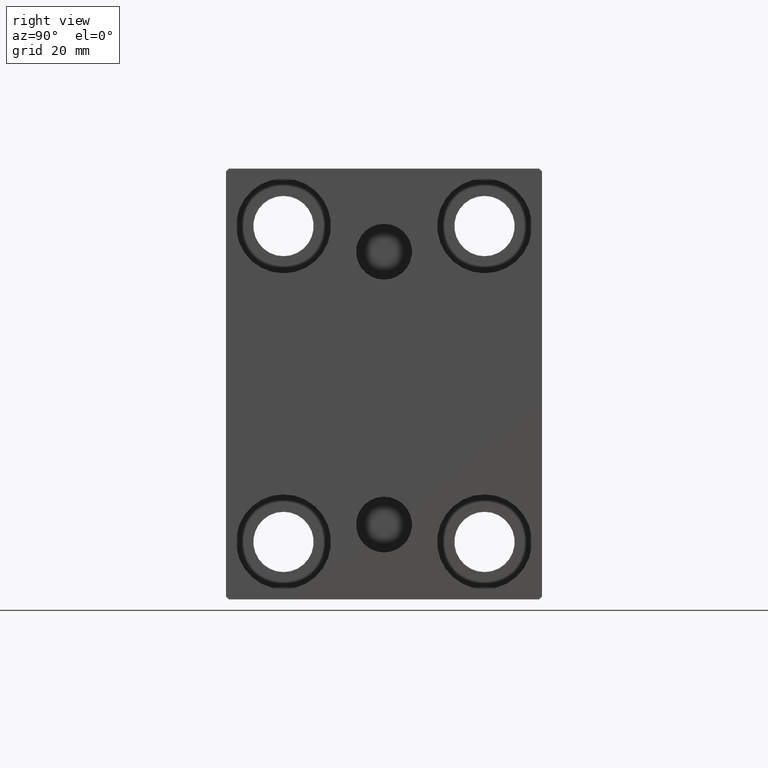
[diagram: clean part render]
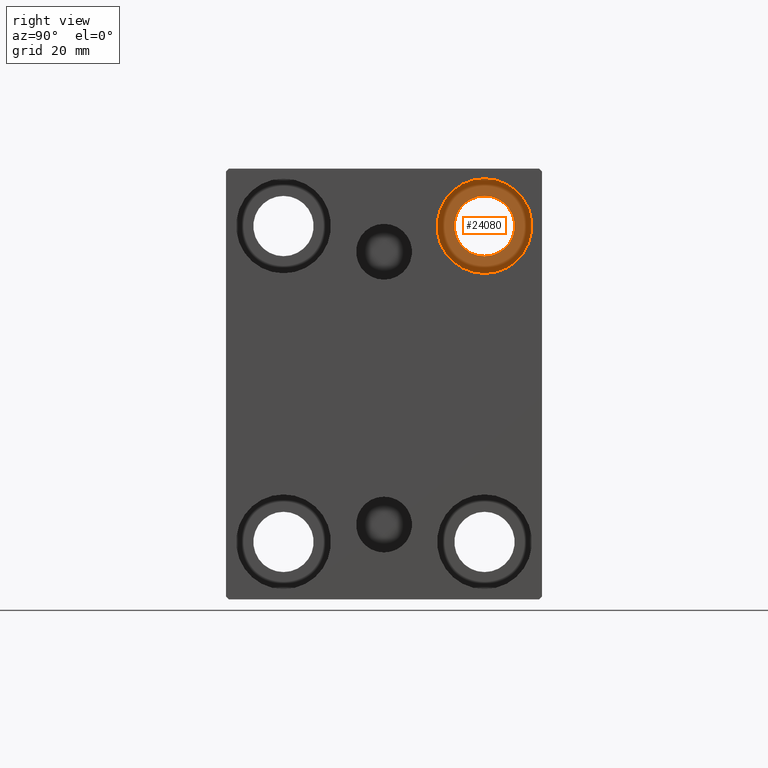
[diagram: same view with one face highlighted and labeled with its STEP entity id]
A machine part, right view. The second image highlights one B-rep face of the part: STEP entity #24080.
In plain terms, the highlighted planar face has unit normal (1, 0, 0).
Its self-contained STEP definition (entity closure, byte-faithful):
#229 = VERTEX_POINT ( 'NONE', #41044 ) ;
#348 = EDGE_CURVE ( 'NONE', #29849, #31704, #35559, .T. ) ;
#4528 = EDGE_LOOP ( 'NONE', ( #40112, #30058 ) ) ;
#4760 = CARTESIAN_POINT ( 'NONE',  ( 64.00000000000000000, 0.000000000000000000, 0.000000000000000000 ) ) ;
#6450 = CARTESIAN_POINT ( 'NONE',  ( 64.00000000000000000, 17.50000000000000355, 32.74999999999999289 ) ) ;
#6656 = VERTEX_POINT ( 'NONE', #7980 ) ;
#7819 = AXIS2_PLACEMENT_3D ( 'NONE', #28700, #24956, #35103 ) ;
#7961 = EDGE_CURVE ( 'NONE', #229, #6656, #23063, .T. ) ;
#7980 = CARTESIAN_POINT ( 'NONE',  ( 64.00000000000000000, 17.50000000000000355, 35.74999999999999289 ) ) ;
#8491 = FACE_BOUND ( 'NONE', #39974, .T. ) ;
#11150 = FACE_OUTER_BOUND ( 'NONE', #4528, .T. ) ;
#11453 = AXIS2_PLACEMENT_3D ( 'NONE', #33725, #33301, #33513 ) ;
#13934 = AXIS2_PLACEMENT_3D ( 'NONE', #38781, #15637, #19153 ) ;
#15558 = CARTESIAN_POINT ( 'NONE',  ( 64.00000000000000000, 17.50000000000000355, 22.25000000000000000 ) ) ;
#15637 = DIRECTION ( 'NONE',  ( -1.000000000000000000, -0.000000000000000000, -0.000000000000000000 ) ) ;
#15698 = CARTESIAN_POINT ( 'NONE',  ( 64.00000000000000000, 17.50000000000000355, 27.49999999999999645 ) ) ;
#17042 = CIRCLE ( 'NONE', #11453, 8.249999999999992895 ) ;
#17737 = ORIENTED_EDGE ( 'NONE', *, *, #348, .T. ) ;
#18560 = DIRECTION ( 'NONE',  ( -1.000000000000000000, -0.000000000000000000, -0.000000000000000000 ) ) ;
#19153 = DIRECTION ( 'NONE',  ( 0.000000000000000000, 0.000000000000000000, 1.000000000000000000 ) ) ;
#21926 = DIRECTION ( 'NONE',  ( 1.000000000000000000, 0.000000000000000000, -0.000000000000000000 ) ) ;
#23063 = CIRCLE ( 'NONE', #13934, 8.249999999999992895 ) ;
#23239 = ORIENTED_EDGE ( 'NONE', *, *, #28197, .T. ) ;
#24080 = ADVANCED_FACE ( 'NONE', ( #11150, #8491 ), #24577, .T. ) ;
#24577 = PLANE ( 'NONE',  #31092 ) ;
#24956 = DIRECTION ( 'NONE',  ( -1.000000000000000000, -0.000000000000000000, -0.000000000000000000 ) ) ;
#28197 = EDGE_CURVE ( 'NONE', #31704, #29849, #43109, .T. ) ;
#28700 = CARTESIAN_POINT ( 'NONE',  ( 64.00000000000000000, 17.50000000000000355, 27.49999999999999645 ) ) ;
#29849 = VERTEX_POINT ( 'NONE', #6450 ) ;
#30058 = ORIENTED_EDGE ( 'NONE', *, *, #32374, .F. ) ;
#31092 = AXIS2_PLACEMENT_3D ( 'NONE', #4760, #21926, #34717 ) ;
#31704 = VERTEX_POINT ( 'NONE', #15558 ) ;
#32008 = DIRECTION ( 'NONE',  ( 0.000000000000000000, 0.000000000000000000, -1.000000000000000000 ) ) ;
#32374 = EDGE_CURVE ( 'NONE', #6656, #229, #17042, .T. ) ;
#33301 = DIRECTION ( 'NONE',  ( -1.000000000000000000, -0.000000000000000000, -0.000000000000000000 ) ) ;
#33456 = AXIS2_PLACEMENT_3D ( 'NONE', #15698, #18560, #32008 ) ;
#33513 = DIRECTION ( 'NONE',  ( 0.000000000000000000, 0.000000000000000000, 1.000000000000000000 ) ) ;
#33725 = CARTESIAN_POINT ( 'NONE',  ( 64.00000000000000000, 17.50000000000000355, 27.49999999999999645 ) ) ;
#34717 = DIRECTION ( 'NONE',  ( 0.000000000000000000, 0.000000000000000000, 1.000000000000000000 ) ) ;
#35103 = DIRECTION ( 'NONE',  ( 0.000000000000000000, 0.000000000000000000, -1.000000000000000000 ) ) ;
#35559 = CIRCLE ( 'NONE', #33456, 5.249999999999997335 ) ;
#38781 = CARTESIAN_POINT ( 'NONE',  ( 64.00000000000000000, 17.50000000000000355, 27.49999999999999645 ) ) ;
#39974 = EDGE_LOOP ( 'NONE', ( #17737, #23239 ) ) ;
#40112 = ORIENTED_EDGE ( 'NONE', *, *, #7961, .F. ) ;
#41044 = CARTESIAN_POINT ( 'NONE',  ( 64.00000000000000000, 17.50000000000000355, 19.25000000000000000 ) ) ;
#43109 = CIRCLE ( 'NONE', #7819, 5.249999999999997335 ) ;